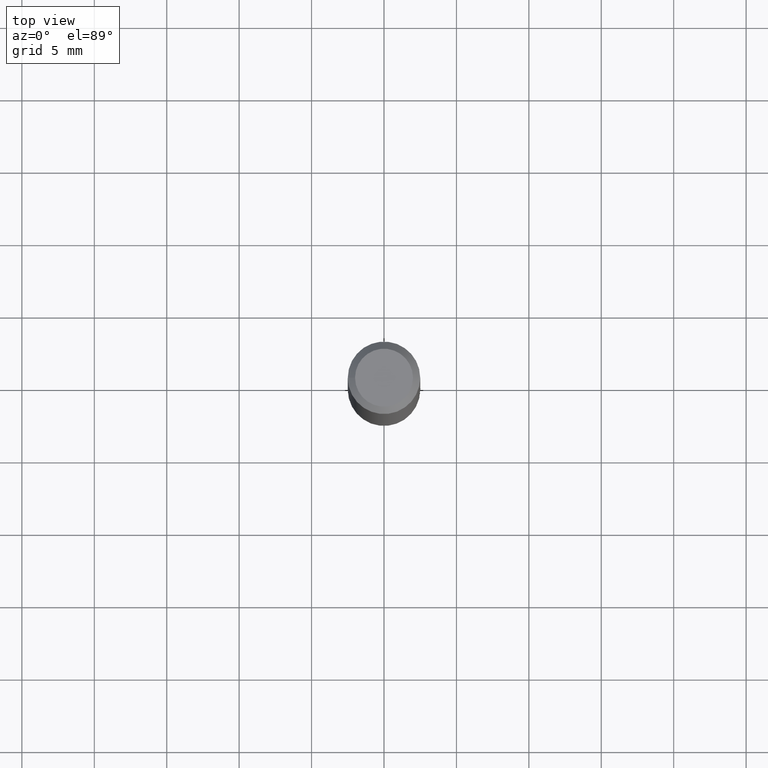
[diagram: clean part render]
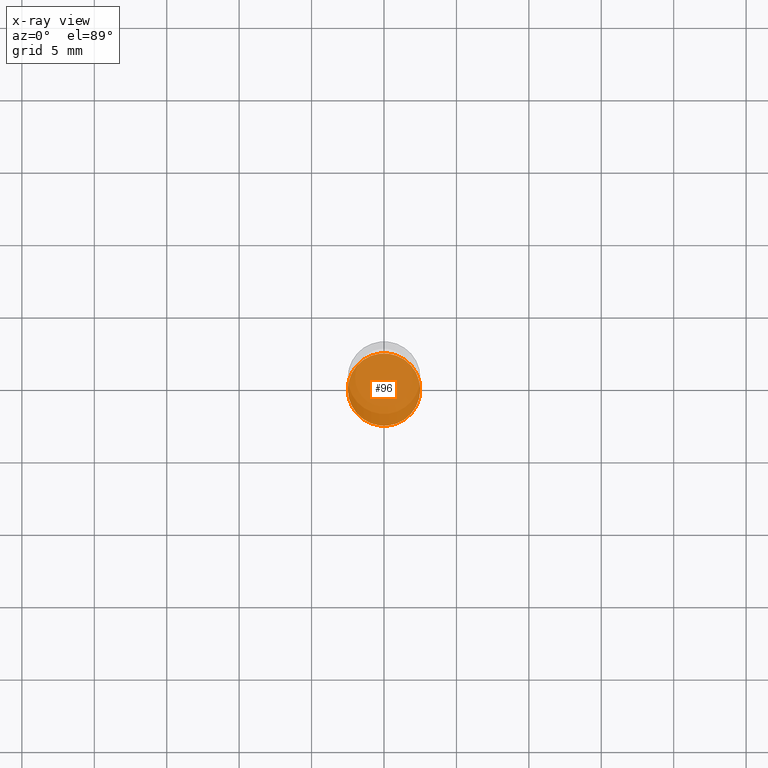
[diagram: x-ray — body ghosted, one internal face saturated and labeled with its STEP entity id]
A machine part, top view, then the same camera in x-ray: the body is ghosted and one INTERNAL B-rep face — a face not visible from any outside direction — is saturated and labeled: STEP entity #96.
In plain terms, the highlighted planar face has unit normal (-0, 0, -1).
Its self-contained STEP definition (entity closure, byte-faithful):
#2 = CARTESIAN_POINT ( 'NONE',  ( -3.316907271900976814E-13, 0.0000000000000000000, -47.50000000000000000 ) ) ;
#3 = DIRECTION ( 'NONE',  ( -1.000000000000000000, 0.0000000000000000000, 6.982962677686266711E-15 ) ) ;
#7 = CARTESIAN_POINT ( 'NONE',  ( 2.499999999999667821, 0.0000000000000000000, -47.50000000000003553 ) ) ;
#15 = EDGE_LOOP ( 'NONE', ( #71 ) ) ;
#19 = FACE_OUTER_BOUND ( 'NONE', #15, .T. ) ;
#21 = CARTESIAN_POINT ( 'NONE',  ( -3.316907271900977823E-13, 0.0000000000000000000, -47.50000000000001421 ) ) ;
#47 = AXIS2_PLACEMENT_3D ( 'NONE', #2, #158, #3 ) ;
#55 = VERTEX_POINT ( 'NONE', #7 ) ;
#64 = CIRCLE ( 'NONE', #170, 2.499999999999999556 ) ;
#71 = ORIENTED_EDGE ( 'NONE', *, *, #134, .T. ) ;
#74 = DIRECTION ( 'NONE',  ( 6.982962677686266711E-15, -0.0000000000000000000, 1.000000000000000000 ) ) ;
#90 = PLANE ( 'NONE',  #47 ) ;
#96 = ADVANCED_FACE ( 'NONE', ( #19 ), #90, .F. ) ;
#112 = DIRECTION ( 'NONE',  ( 1.000000000000000000, 0.0000000000000000000, -8.326672684688675631E-15 ) ) ;
#134 = EDGE_CURVE ( 'NONE', #55, #55, #64, .T. ) ;
#158 = DIRECTION ( 'NONE',  ( -6.982962677686266711E-15, 0.0000000000000000000, -1.000000000000000000 ) ) ;
#170 = AXIS2_PLACEMENT_3D ( 'NONE', #21, #74, #112 ) ;